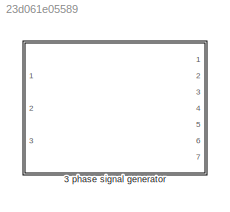
MODEL slx_23d061e05589
KIND library
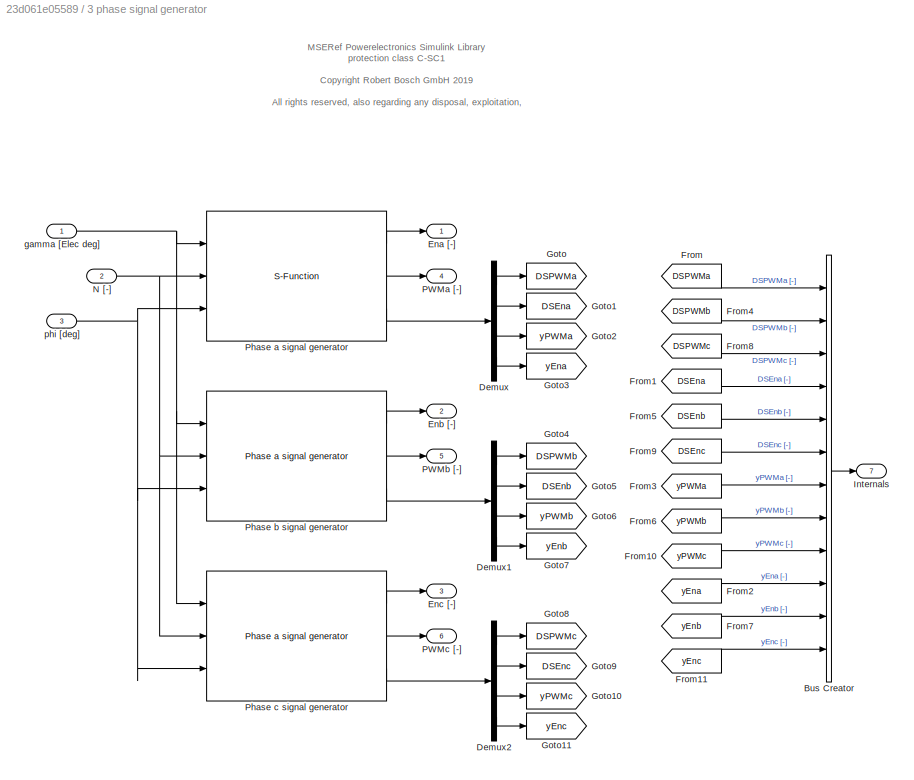
BLOCK [SubSystem] 3 phase signal generator
  AttributesFormatString = <%<Tag>>
  Ports = [3, 7]
  RequestExecContextInheritance = off
  Tag = PE3PHABLO01MSEREF
BLOCK [BusCreator] 3 phase signal generator/Bus Creator
  DisplayOption = bar
  Inputs = 12
  Ports = [12, 1]
BLOCK [Demux] 3 phase signal generator/Demux
  DisplayOption = bar
  Ports = [1, 4]
BLOCK [Demux] 3 phase signal generator/Demux1
  DisplayOption = bar
  Ports = [1, 4]
BLOCK [Demux] 3 phase signal generator/Demux2
  DisplayOption = bar
  Ports = [1, 4]
BLOCK [Outport] 3 phase signal generator/Ena [-]
  IconDisplay = Port number
BLOCK [Outport] 3 phase signal generator/Enb [-]
  IconDisplay = Port number
  Port = 2
BLOCK [Outport] 3 phase signal generator/Enc [-]
  IconDisplay = Port number
  Port = 3
BLOCK [From] 3 phase signal generator/From
  GotoTag = DSPWMa
BLOCK [From] 3 phase signal generator/From1
  GotoTag = DSEna
BLOCK [From] 3 phase signal generator/From10
  GotoTag = yPWMc
BLOCK [From] 3 phase signal generator/From11
  GotoTag = yEnc
BLOCK [From] 3 phase signal generator/From2
  GotoTag = yEna
BLOCK [From] 3 phase signal generator/From3
  GotoTag = yPWMa
BLOCK [From] 3 phase signal generator/From4
  GotoTag = DSPWMb
BLOCK [From] 3 phase signal generator/From5
  GotoTag = DSEnb
BLOCK [From] 3 phase signal generator/From6
  GotoTag = yPWMb
BLOCK [From] 3 phase signal generator/From7
  GotoTag = yEnb
BLOCK [From] 3 phase signal generator/From8
  GotoTag = DSPWMc
BLOCK [From] 3 phase signal generator/From9
  GotoTag = DSEnc
BLOCK [Goto] 3 phase signal generator/Goto
  GotoTag = DSPWMa
BLOCK [Goto] 3 phase signal generator/Goto1
  GotoTag = DSEna
BLOCK [Goto] 3 phase signal generator/Goto10
  GotoTag = yPWMc
BLOCK [Goto] 3 phase signal generator/Goto11
  GotoTag = yEnc
BLOCK [Goto] 3 phase signal generator/Goto2
  GotoTag = yPWMa
BLOCK [Goto] 3 phase signal generator/Goto3
  GotoTag = yEna
BLOCK [Goto] 3 phase signal generator/Goto4
  GotoTag = DSPWMb
BLOCK [Goto] 3 phase signal generator/Goto5
  GotoTag = DSEnb
BLOCK [Goto] 3 phase signal generator/Goto6
  GotoTag = yPWMb
BLOCK [Goto] 3 phase signal generator/Goto7
  GotoTag = yEnb
BLOCK [Goto] 3 phase signal generator/Goto8
  GotoTag = DSPWMc
BLOCK [Goto] 3 phase signal generator/Goto9
  GotoTag = DSEnc
BLOCK [Outport] 3 phase signal generator/Internals
  IconDisplay = Port number
  Port = 7
BLOCK [Inport] 3 phase signal generator/N [-]
  IconDisplay = Port number
  Port = 2
BLOCK [Outport] 3 phase signal generator/PWMa [-]
  IconDisplay = Port number
  Port = 4
BLOCK [Outport] 3 phase signal generator/PWMb [-]
  IconDisplay = Port number
  Port = 5
BLOCK [Outport] 3 phase signal generator/PWMc [-]
  IconDisplay = Port number
  Port = 6
BLOCK [S-Function] 3 phase signal generator/Phase a signal generator
  AttributesFormatString = <%<Tag>>
  EnableBusSupport = off
  FunctionName = PEPHABLO01MSEREF_sfn
  Parameters = beta, range, phi_offset
  Ports = [3, 3]
  Tag = PEPHABLO01MSEREF
BLOCK [Reference] 3 phase signal generator/Phase b signal generator  REF=PE3PHABLO01MSEREF/3 phase signal generator/Phase a signal generator
  AttributesFormatString = <%<Tag>>
  Ports = [3, 3]
  SourceBlock = PE3PHABLO01MSEREF/3 phase signal generator/Phase a signal generator
  Tag = PEPHABLO01MSEREF
  beta = beta
  phi_offset = 120
  range = range
BLOCK [Reference] 3 phase signal generator/Phase c signal generator  REF=PE3PHABLO01MSEREF/3 phase signal generator/Phase a signal generator
  AttributesFormatString = <%<Tag>>
  Ports = [3, 3]
  SourceBlock = PE3PHABLO01MSEREF/3 phase signal generator/Phase a signal generator
  Tag = PEPHABLO01MSEREF
  beta = beta
  phi_offset = 240
  range = range
BLOCK [Inport] 3 phase signal generator/gamma [Elec deg]
  IconDisplay = Port number
BLOCK [Inport] 3 phase signal generator/phi [deg]
  IconDisplay = Port number
  Port = 3
ANNOTATION 3 phase signal generator: MSERef Powerelectronics Simulink Library protection class C-SC1 <copyright redacted>
LINE 3 phase signal generator/Bus Creator:1 -> 3 phase signal generator/Internals:1
LINE 3 phase signal generator/Demux1:1 -> 3 phase signal generator/Goto4:1
LINE 3 phase signal generator/Demux1:2 -> 3 phase signal generator/Goto5:1
LINE 3 phase signal generator/Demux1:3 -> 3 phase signal generator/Goto6:1
LINE 3 phase signal generator/Demux1:4 -> 3 phase signal generator/Goto7:1
LINE 3 phase signal generator/Demux2:1 -> 3 phase signal generator/Goto8:1
LINE 3 phase signal generator/Demux2:2 -> 3 phase signal generator/Goto9:1
LINE 3 phase signal generator/Demux2:3 -> 3 phase signal generator/Goto10:1
LINE 3 phase signal generator/Demux2:4 -> 3 phase signal generator/Goto11:1
LINE 3 phase signal generator/Demux:1 -> 3 phase signal generator/Goto:1
LINE 3 phase signal generator/Demux:2 -> 3 phase signal generator/Goto1:1
LINE 3 phase signal generator/Demux:3 -> 3 phase signal generator/Goto2:1
LINE 3 phase signal generator/Demux:4 -> 3 phase signal generator/Goto3:1
LINE 3 phase signal generator/From10:1 -> 3 phase signal generator/Bus Creator:9
LINE 3 phase signal generator/From11:1 -> 3 phase signal generator/Bus Creator:12
LINE 3 phase signal generator/From1:1 -> 3 phase signal generator/Bus Creator:4
LINE 3 phase signal generator/From2:1 -> 3 phase signal generator/Bus Creator:10
LINE 3 phase signal generator/From3:1 -> 3 phase signal generator/Bus Creator:7
LINE 3 phase signal generator/From4:1 -> 3 phase signal generator/Bus Creator:2
LINE 3 phase signal generator/From5:1 -> 3 phase signal generator/Bus Creator:5
LINE 3 phase signal generator/From6:1 -> 3 phase signal generator/Bus Creator:8
LINE 3 phase signal generator/From7:1 -> 3 phase signal generator/Bus Creator:11
LINE 3 phase signal generator/From8:1 -> 3 phase signal generator/Bus Creator:3
LINE 3 phase signal generator/From9:1 -> 3 phase signal generator/Bus Creator:6
LINE 3 phase signal generator/From:1 -> 3 phase signal generator/Bus Creator:1
NET 3 phase signal generator/N [-]:1 -> 3 phase signal generator/Phase a signal generator:2, 3 phase signal generator/Phase b signal generator:2, 3 phase signal generator/Phase c signal generator:2
LINE 3 phase signal generator/Phase a signal generator:1 -> 3 phase signal generator/Ena [-]:1
LINE 3 phase signal generator/Phase a signal generator:2 -> 3 phase signal generator/PWMa [-]:1
LINE 3 phase signal generator/Phase a signal generator:3 -> 3 phase signal generator/Demux:1
LINE 3 phase signal generator/Phase b signal generator:1 -> 3 phase signal generator/Enb [-]:1
LINE 3 phase signal generator/Phase b signal generator:2 -> 3 phase signal generator/PWMb [-]:1
LINE 3 phase signal generator/Phase b signal generator:3 -> 3 phase signal generator/Demux1:1
LINE 3 phase signal generator/Phase c signal generator:1 -> 3 phase signal generator/Enc [-]:1
LINE 3 phase signal generator/Phase c signal generator:2 -> 3 phase signal generator/PWMc [-]:1
LINE 3 phase signal generator/Phase c signal generator:3 -> 3 phase signal generator/Demux2:1
NET 3 phase signal generator/gamma [Elec deg]:1 -> 3 phase signal generator/Phase a signal generator:1, 3 phase signal generator/Phase b signal generator:1, 3 phase signal generator/Phase c signal generator:1
NET 3 phase signal generator/phi [deg]:1 -> 3 phase signal generator/Phase a signal generator:3, 3 phase signal generator/Phase b signal generator:3, 3 phase signal generator/Phase c signal generator:3
note: NET lines group one-source signal fan-out (src -> all destinations, sorted); 1:1 wires keep LINE
